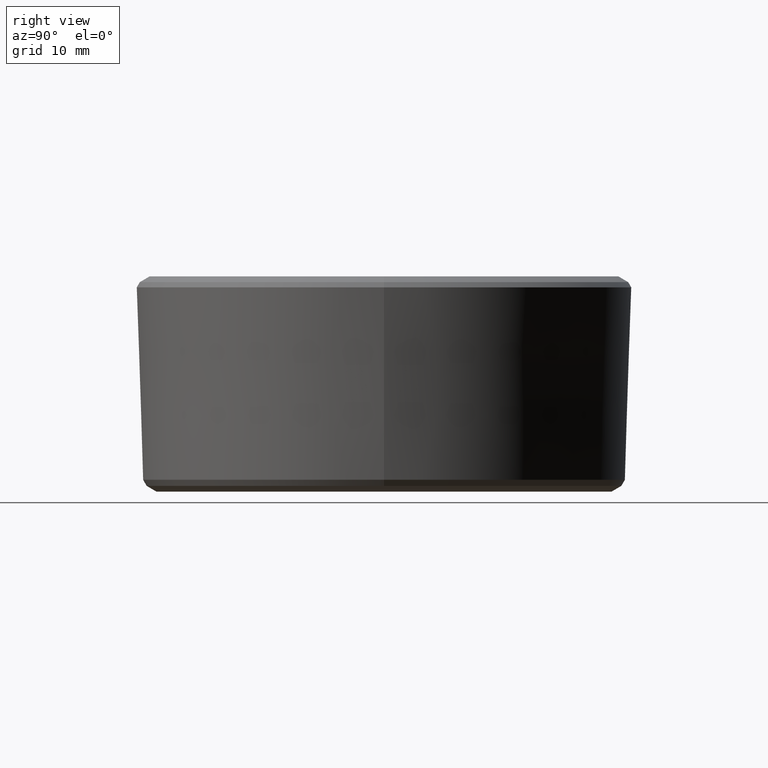
[diagram: clean part render]
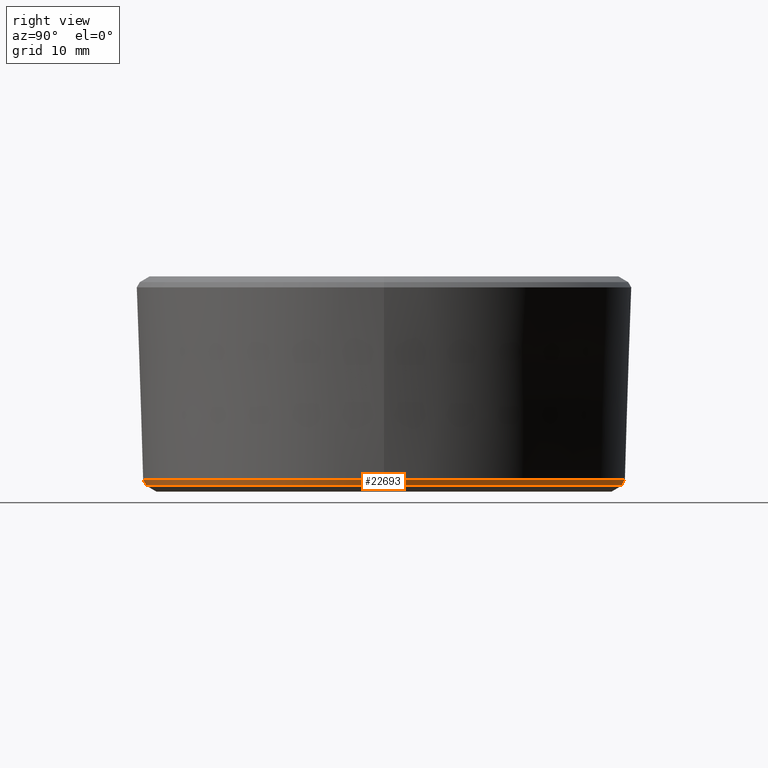
[diagram: same view with one face highlighted and labeled with its STEP entity id]
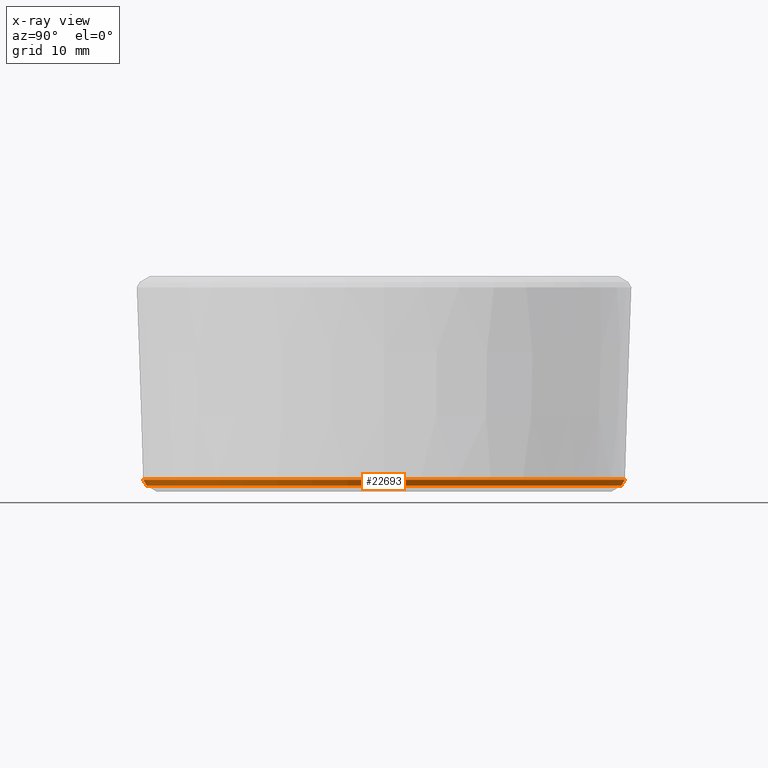
[diagram: x-ray of the same camera — body ghosted, the highlighted face saturated]
A machine part, right view. The second image highlights one B-rep face of the part: STEP entity #22693.
The next image is the same camera in x-ray: the body ghosted, the highlighted face saturated — about 0% of this face is hidden behind the body in this view.
In plain terms, the highlighted conical surface has half-angle 30 deg.
Its self-contained STEP definition (entity closure, byte-faithful):
#23=CONICAL_SURFACE('',#23588,1.10341441090649,0.523598775598299);
#3265=FACE_OUTER_BOUND('',#4592,.T.);
#4592=EDGE_LOOP('',(#21387,#21388,#21389,#21390));
#7034=LINE('',#39246,#9480);
#9480=VECTOR('',#27754,1.10341441090649);
#9544=CIRCLE('',#23586,1.103125);
#9546=CIRCLE('',#23589,1.11932882181297);
#11697=VERTEX_POINT('',#39239);
#11699=VERTEX_POINT('',#39245);
#14932=EDGE_CURVE('',#11697,#11697,#9544,.T.);
#14935=EDGE_CURVE('',#11697,#11699,#7034,.T.);
#14936=EDGE_CURVE('',#11699,#11699,#9546,.T.);
#21387=ORIENTED_EDGE('',*,*,#14932,.F.);
#21388=ORIENTED_EDGE('',*,*,#14935,.T.);
#21389=ORIENTED_EDGE('',*,*,#14936,.T.);
#21390=ORIENTED_EDGE('',*,*,#14935,.F.);
#22693=ADVANCED_FACE('',(#3265),#23,.T.);
#23586=AXIS2_PLACEMENT_3D('',#39240,#27747,#27748);
#23588=AXIS2_PLACEMENT_3D('',#39244,#27752,#27753);
#23589=AXIS2_PLACEMENT_3D('',#39247,#27755,#27756);
#27747=DIRECTION('center_axis',(-1.1059487273737E-32,-3.66516490028157E-16,
-1.));
#27748=DIRECTION('ref_axis',(-1.,3.01745967088338E-17,0.));
#27752=DIRECTION('center_axis',(0.,1.24324680670614E-15,1.));
#27753=DIRECTION('ref_axis',(-1.,-3.10577432485339E-17,0.));
#27754=DIRECTION('',(0.500000000000001,1.03097984944829E-15,0.866025403784438));
#27755=DIRECTION('center_axis',(0.,0.,-1.));
#27756=DIRECTION('ref_axis',(-1.,-6.12323399573677E-17,0.));
#39239=CARTESIAN_POINT('',(1.103125,-2.02280773360177E-16,0.0270632938682636));
#39240=CARTESIAN_POINT('Origin',(0.,-3.39005713348027E-17,0.0270632938682636));
#39244=CARTESIAN_POINT('Origin',(0.,3.42695614706659E-17,0.0275645682625639));
#39245=CARTESIAN_POINT('',(1.11932882181297,0.,0.0551291365251279));
#39246=CARTESIAN_POINT('',(1.10341441090649,-6.65901697036373E-17,0.0275645682625639));
#39247=CARTESIAN_POINT('Origin',(0.,6.85391229413318E-17,0.0551291365251279));